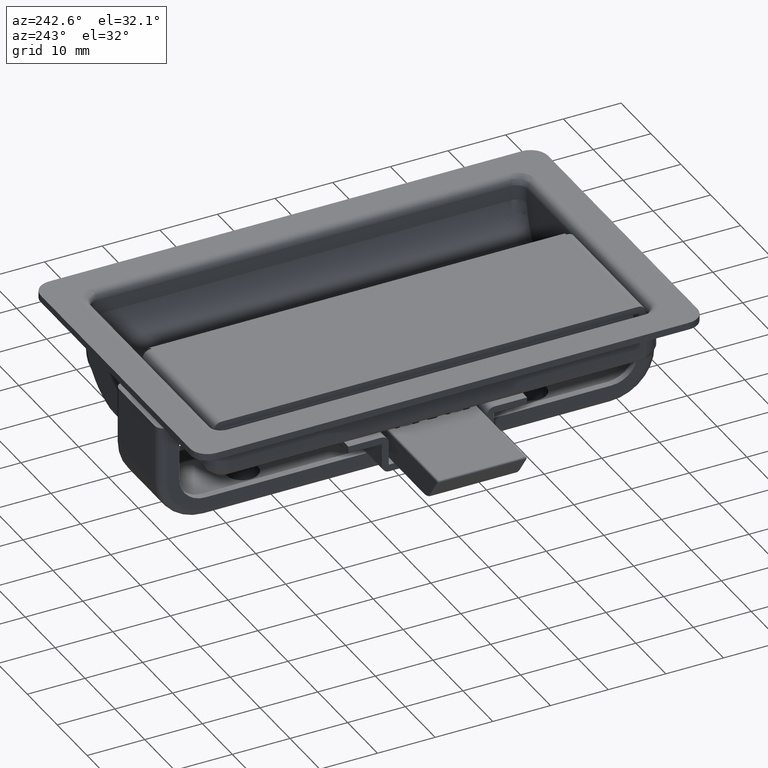
[diagram: clean part render]
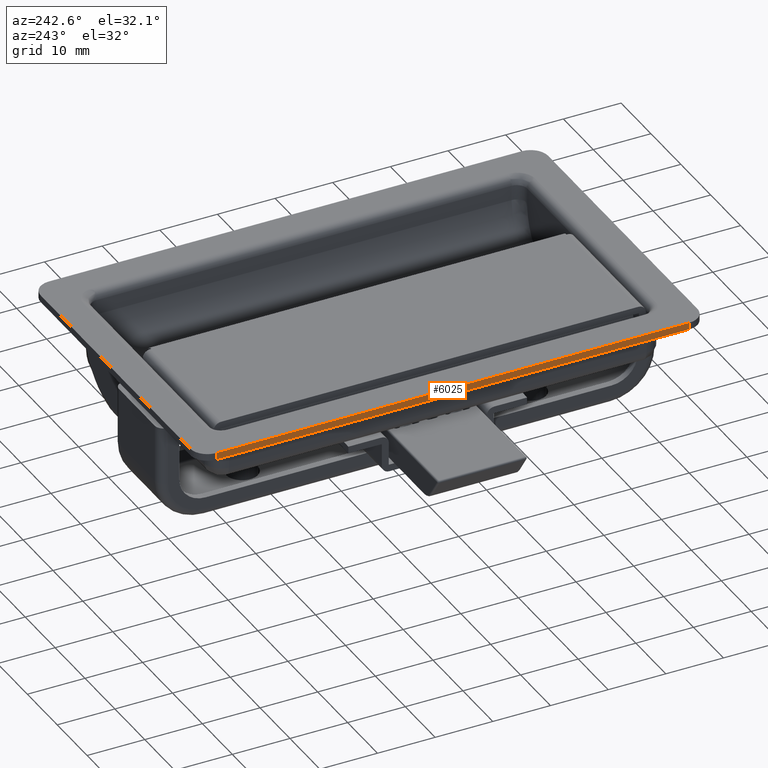
[diagram: same view with one face highlighted and labeled with its STEP entity id]
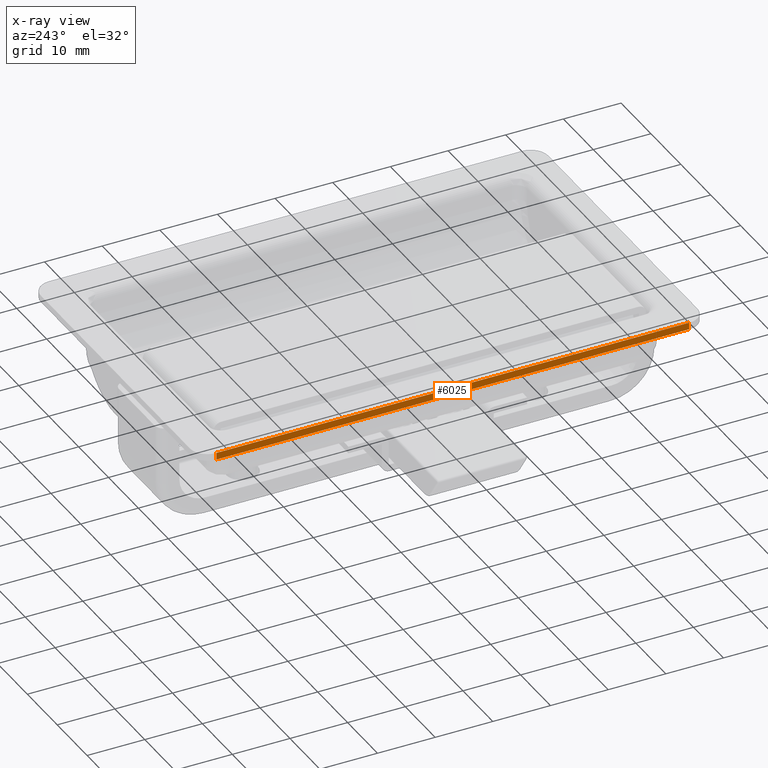
[diagram: x-ray of the same camera — body ghosted, the highlighted face saturated]
A machine part, auxiliary view. The second image highlights one B-rep face of the part: STEP entity #6025.
The next image is the same camera in x-ray: the body ghosted, the highlighted face saturated — about 0% of this face is hidden behind the body in this view.
In plain terms, the highlighted planar face has unit normal (-1, -0, 0).
Its self-contained STEP definition (entity closure, byte-faithful):
#244=LINE('',#9203,#778);
#256=LINE('',#9238,#790);
#257=LINE('',#9241,#791);
#258=LINE('',#9242,#792);
#778=VECTOR('',#7229,1.2);
#790=VECTOR('',#7263,1.2);
#791=VECTOR('',#7268,82.);
#792=VECTOR('',#7269,82.);
#1292=PLANE('',#6457);
#1544=FACE_OUTER_BOUND('',#1955,.T.);
#1955=EDGE_LOOP('',(#4196,#4197,#4198,#4199));
#2726=VERTEX_POINT('',#9197);
#2728=VERTEX_POINT('',#9201);
#2739=VERTEX_POINT('',#9235);
#2740=VERTEX_POINT('',#9237);
#3261=EDGE_CURVE('',#2728,#2726,#244,.T.);
#3278=EDGE_CURVE('',#2740,#2739,#256,.T.);
#3280=EDGE_CURVE('',#2726,#2739,#257,.T.);
#3281=EDGE_CURVE('',#2728,#2740,#258,.T.);
#4196=ORIENTED_EDGE('',*,*,#3280,.F.);
#4197=ORIENTED_EDGE('',*,*,#3261,.F.);
#4198=ORIENTED_EDGE('',*,*,#3281,.T.);
#4199=ORIENTED_EDGE('',*,*,#3278,.T.);
#6025=ADVANCED_FACE('',(#1544),#1292,.T.);
#6457=AXIS2_PLACEMENT_3D('',#9240,#7266,#7267);
#7229=DIRECTION('',(0.,0.,1.));
#7263=DIRECTION('',(0.,0.,1.));
#7266=DIRECTION('center_axis',(1.,0.,0.));
#7267=DIRECTION('ref_axis',(0.,0.,-1.));
#7268=DIRECTION('',(0.,1.,0.));
#7269=DIRECTION('',(0.,1.,0.));
#9197=CARTESIAN_POINT('',(28.,-41.,0.));
#9201=CARTESIAN_POINT('',(28.,-41.,-1.2));
#9203=CARTESIAN_POINT('',(28.,-41.,-1.2));
#9235=CARTESIAN_POINT('',(28.,41.,0.));
#9237=CARTESIAN_POINT('',(28.,41.,-1.2));
#9238=CARTESIAN_POINT('',(28.,41.,-1.2));
#9240=CARTESIAN_POINT('Origin',(28.,-41.,-1.2));
#9241=CARTESIAN_POINT('',(28.,-41.,0.));
#9242=CARTESIAN_POINT('',(28.,-41.,-1.2));